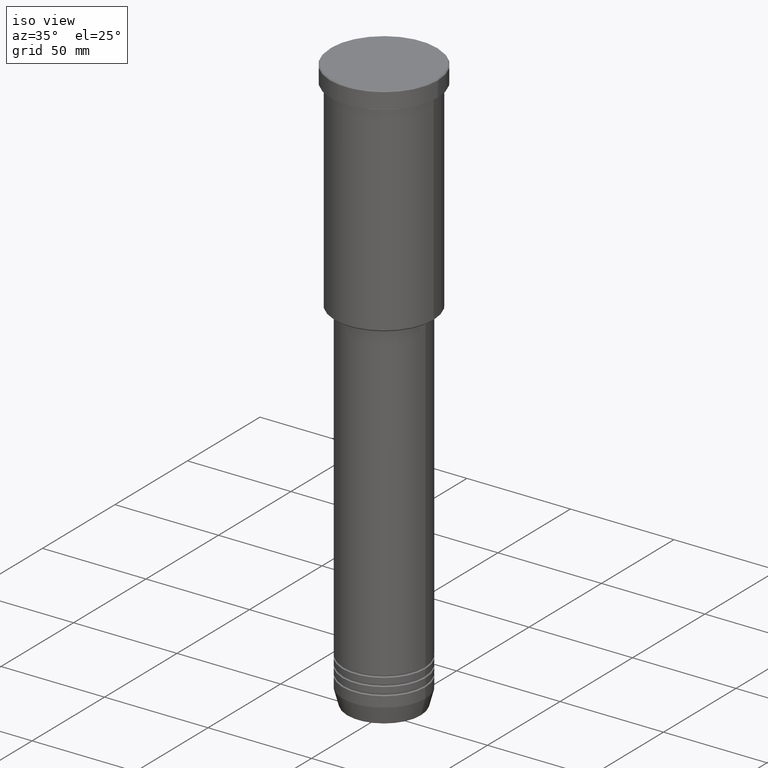
[diagram: clean part render]
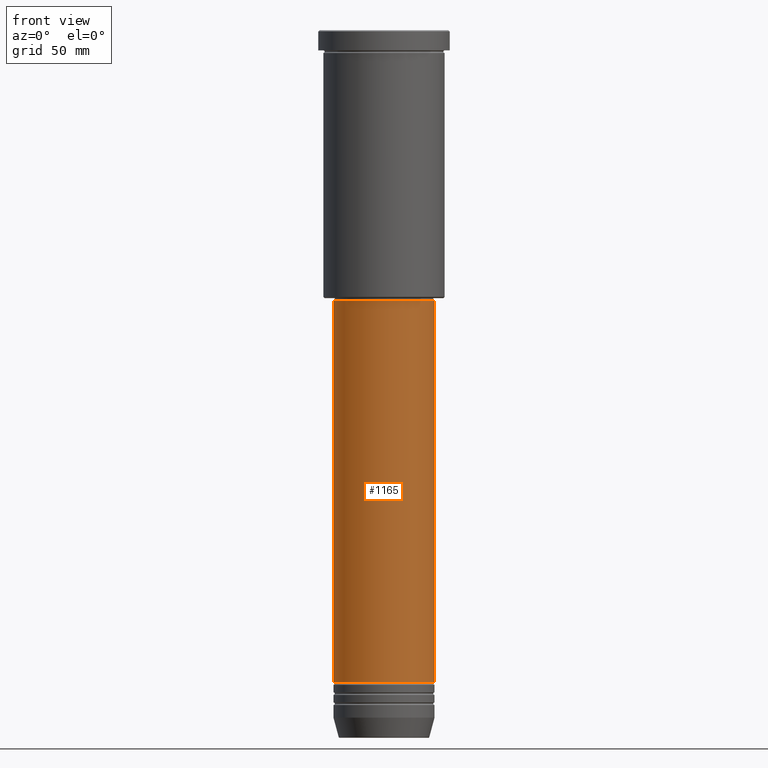
[diagram: tour spotlight — one face highlighted and labeled with its STEP entity id]
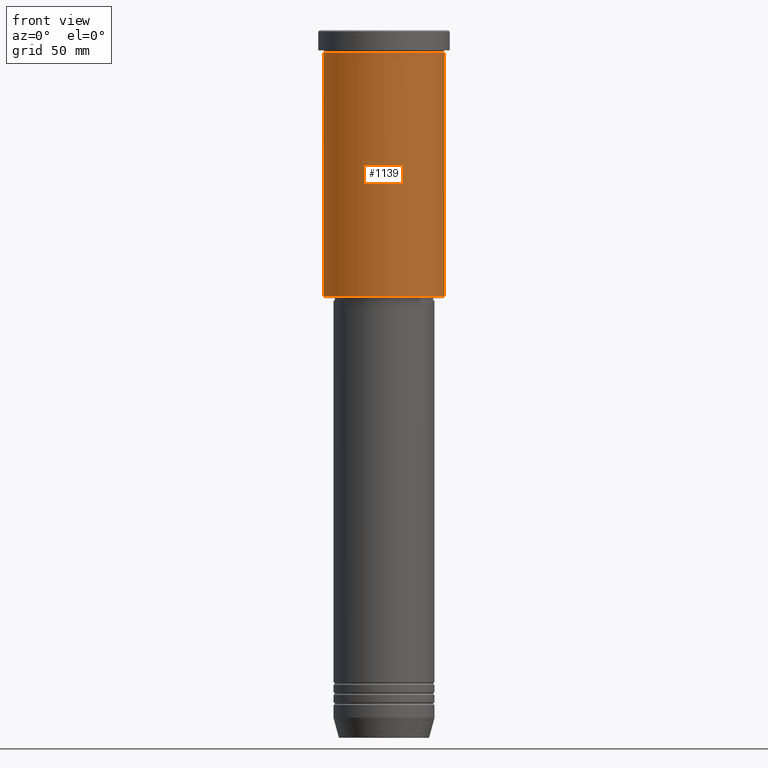
[diagram: tour spotlight — one face highlighted and labeled with its STEP entity id]
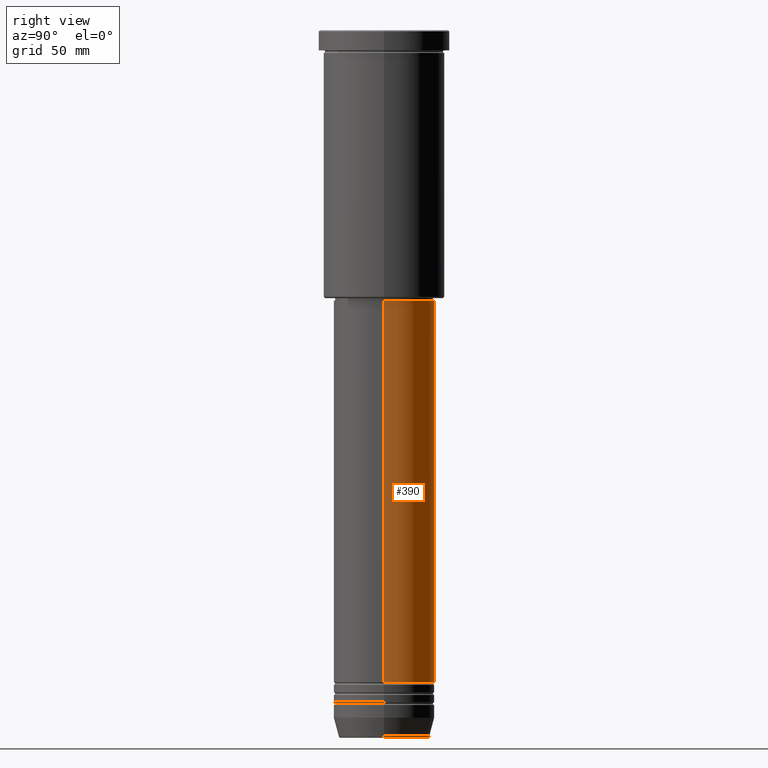
[diagram: tour spotlight — one face highlighted and labeled with its STEP entity id]
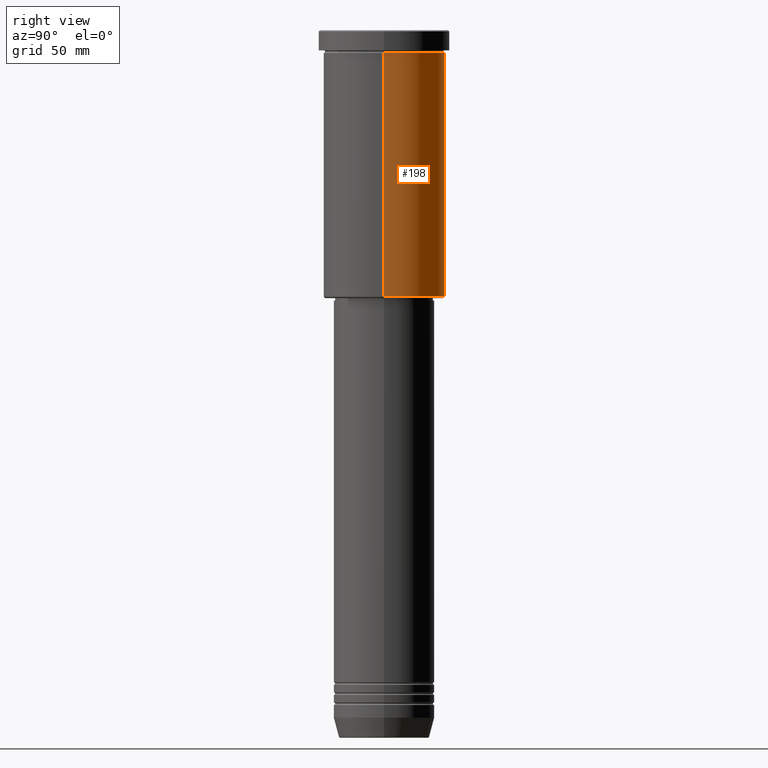
[diagram: tour spotlight — one face highlighted and labeled with its STEP entity id]
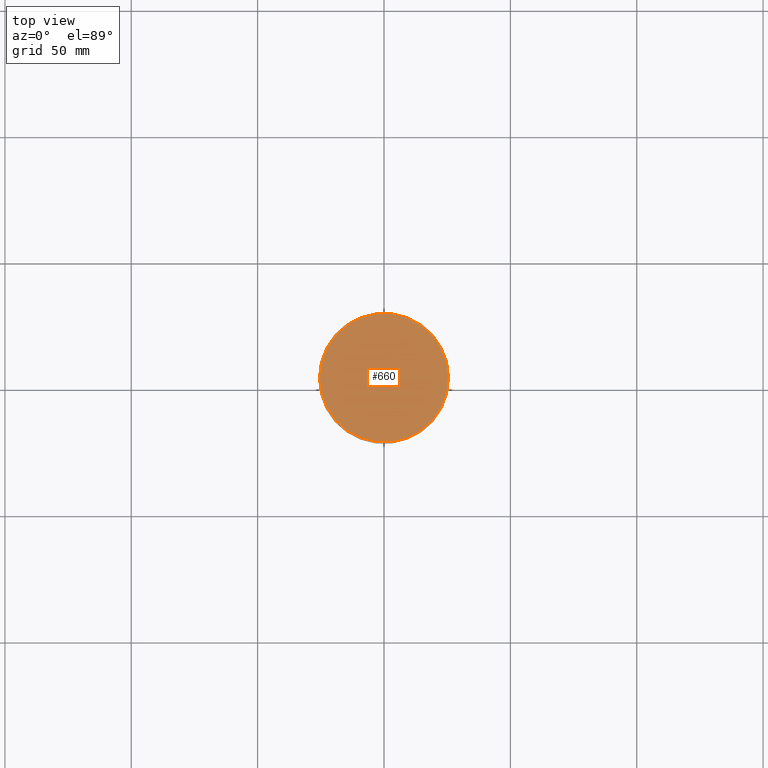
[diagram: tour spotlight — one face highlighted and labeled with its STEP entity id]
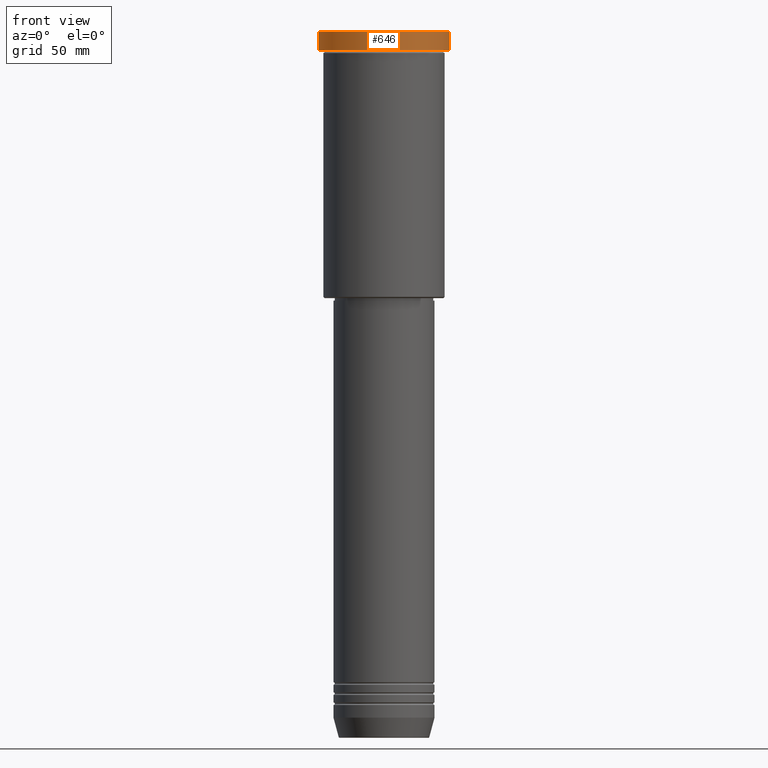
[diagram: tour spotlight — one face highlighted and labeled with its STEP entity id]
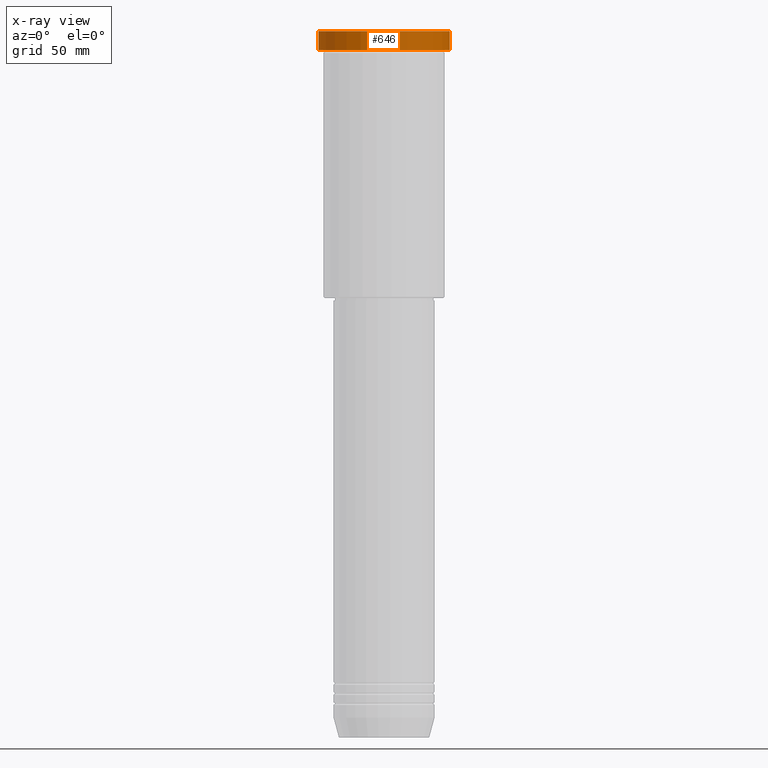
[diagram: x-ray of the same camera — body ghosted, this tour face saturated]
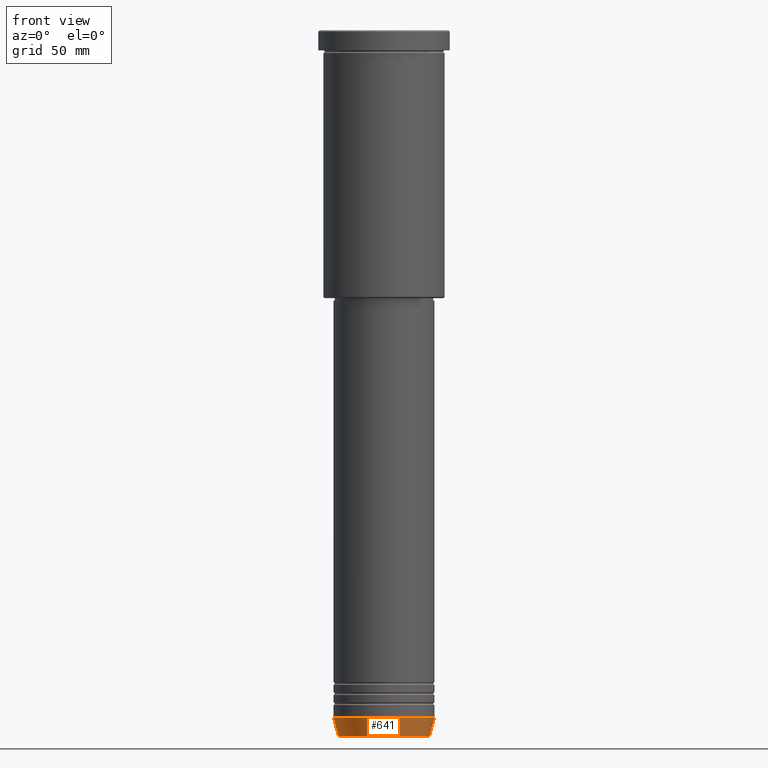
[diagram: tour spotlight — one face highlighted and labeled with its STEP entity id]
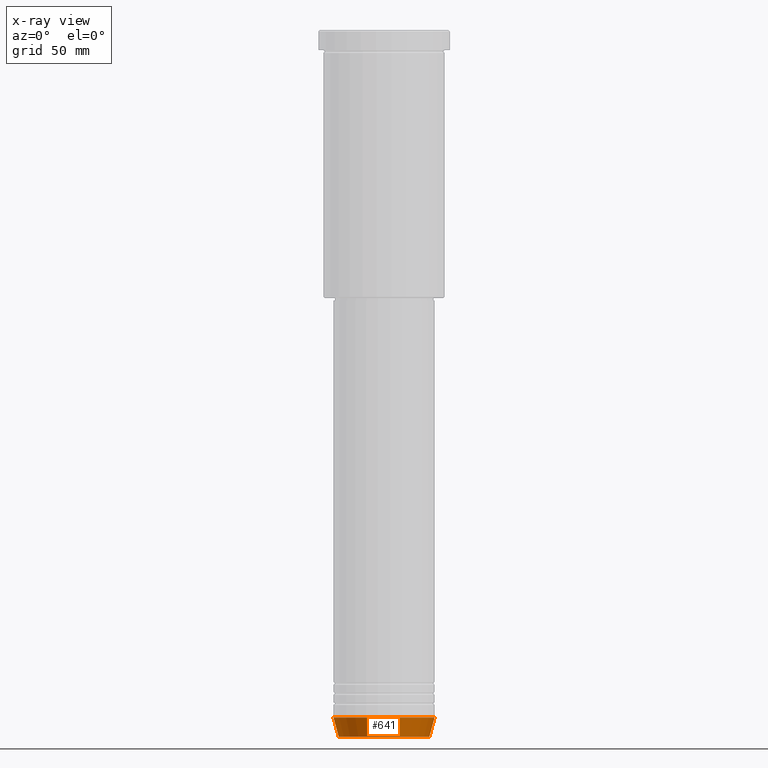
[diagram: x-ray of the same camera — body ghosted, this tour face saturated]
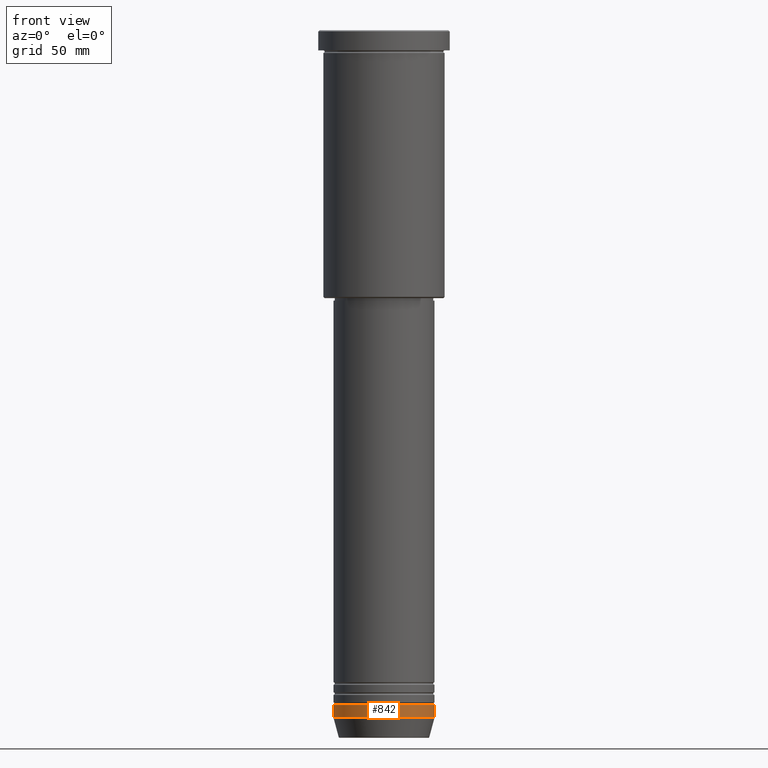
[diagram: tour spotlight — one face highlighted and labeled with its STEP entity id]
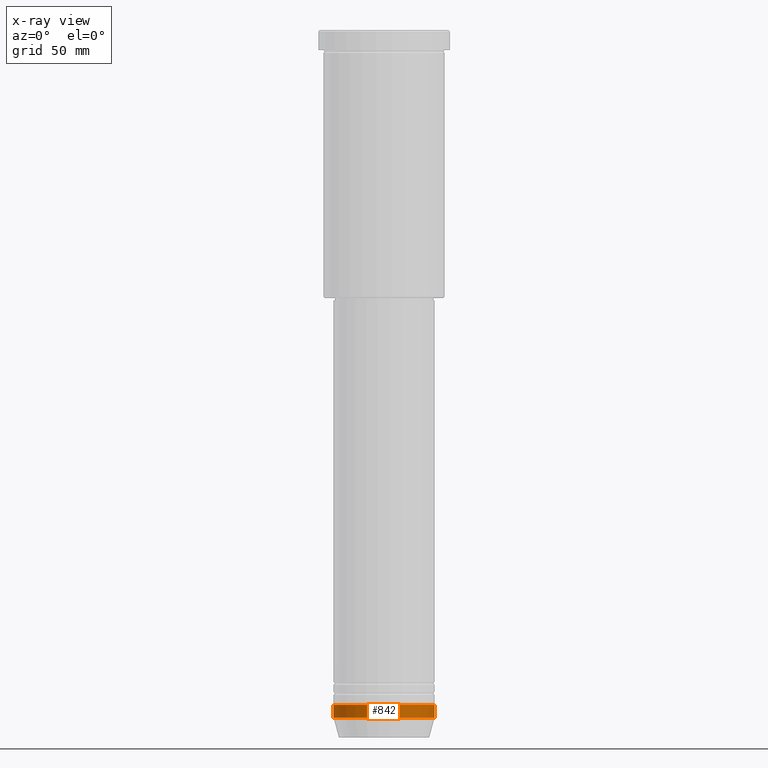
[diagram: x-ray of the same camera — body ghosted, this tour face saturated]
A machine part: a face-by-face anatomy tour. The part has 43 B-rep faces; the first image is the clean iso view, then the 8 largest visible faces are spotlighted one at a time (largest first), each with its STEP entity span.

Face 1 — front view, entity #1165. In plain terms, the highlighted cylindrical surface (partial cylindrical patch) has radius 20 mm, axis along (-0, -0, 1).
Definition (entity closure, byte-faithful):
#23 = LINE ( 'NONE', #825, #944 ) ;
#31 = ORIENTED_EDGE ( 'NONE', *, *, #751, .F. ) ;
#98 = AXIS2_PLACEMENT_3D ( 'NONE', #318, #712, #1065 ) ;
#112 = LINE ( 'NONE', #834, #303 ) ;
#119 = DIRECTION ( 'NONE',  ( -0.000000000000000000, -0.000000000000000000, 1.000000000000000000 ) ) ;
#235 = DIRECTION ( 'NONE',  ( 1.000000000000000000, 0.000000000000000000, 0.000000000000000000 ) ) ;
#303 = VECTOR ( 'NONE', #919, 1000.000000000000000 ) ;
#318 = CARTESIAN_POINT ( 'NONE',  ( 0.000000000000000000, 0.000000000000000000, -106.9999999999999858 ) ) ;
#346 = DIRECTION ( 'NONE',  ( -0.000000000000000000, -0.000000000000000000, 1.000000000000000000 ) ) ;
#377 = EDGE_CURVE ( 'NONE', #617, #796, #965, .T. ) ;
#386 = CARTESIAN_POINT ( 'NONE',  ( 20.00000000000000355, 0.000000000000000000, -258.0000000000000000 ) ) ;
#429 = CARTESIAN_POINT ( 'NONE',  ( 0.000000000000000000, 0.000000000000000000, -258.0000000000000000 ) ) ;
#458 = EDGE_CURVE ( 'NONE', #800, #1107, #687, .T. ) ;
#472 = DIRECTION ( 'NONE',  ( -0.000000000000000000, -0.000000000000000000, 1.000000000000000000 ) ) ;
#563 = FACE_OUTER_BOUND ( 'NONE', #602, .T. ) ;
#568 = CYLINDRICAL_SURFACE ( 'NONE', #832, 20.00000000000000355 ) ;
#602 = EDGE_LOOP ( 'NONE', ( #31, #1140, #704, #903 ) ) ;
#617 = VERTEX_POINT ( 'NONE', #729 ) ;
#673 = EDGE_CURVE ( 'NONE', #1107, #796, #23, .T. ) ;
#687 = CIRCLE ( 'NONE', #906, 20.00000000000000355 ) ;
#704 = ORIENTED_EDGE ( 'NONE', *, *, #673, .T. ) ;
#712 = DIRECTION ( 'NONE',  ( -0.000000000000000000, -0.000000000000000000, 1.000000000000000000 ) ) ;
#729 = CARTESIAN_POINT ( 'NONE',  ( -20.00000000000000355, 2.449293598294706907E-15, -106.9999999999999858 ) ) ;
#740 = CARTESIAN_POINT ( 'NONE',  ( 0.000000000000000000, 0.000000000000000000, 0.000000000000000000 ) ) ;
#751 = EDGE_CURVE ( 'NONE', #800, #617, #112, .T. ) ;
#762 = CARTESIAN_POINT ( 'NONE',  ( 20.00000000000000355, 0.000000000000000000, -106.9999999999999858 ) ) ;
#796 = VERTEX_POINT ( 'NONE', #762 ) ;
#800 = VERTEX_POINT ( 'NONE', #1123 ) ;
#825 = CARTESIAN_POINT ( 'NONE',  ( 20.00000000000000355, 0.000000000000000000, 0.000000000000000000 ) ) ;
#832 = AXIS2_PLACEMENT_3D ( 'NONE', #740, #472, #1100 ) ;
#834 = CARTESIAN_POINT ( 'NONE',  ( -20.00000000000000355, 2.449293598294706907E-15, 0.000000000000000000 ) ) ;
#903 = ORIENTED_EDGE ( 'NONE', *, *, #377, .F. ) ;
#906 = AXIS2_PLACEMENT_3D ( 'NONE', #429, #346, #235 ) ;
#919 = DIRECTION ( 'NONE',  ( -0.000000000000000000, -0.000000000000000000, 1.000000000000000000 ) ) ;
#944 = VECTOR ( 'NONE', #119, 1000.000000000000000 ) ;
#965 = CIRCLE ( 'NONE', #98, 20.00000000000000355 ) ;
#1065 = DIRECTION ( 'NONE',  ( 1.000000000000000000, 0.000000000000000000, 0.000000000000000000 ) ) ;
#1100 = DIRECTION ( 'NONE',  ( 1.000000000000000000, 0.000000000000000000, 0.000000000000000000 ) ) ;
#1107 = VERTEX_POINT ( 'NONE', #386 ) ;
#1123 = CARTESIAN_POINT ( 'NONE',  ( -20.00000000000000355, 2.449293598294706907E-15, -258.0000000000000000 ) ) ;
#1140 = ORIENTED_EDGE ( 'NONE', *, *, #458, .T. ) ;
#1165 = ADVANCED_FACE ( 'NONE', ( #563 ), #568, .T. ) ;

Face 2 — front view, entity #1139. In plain terms, the highlighted cylindrical surface (partial cylindrical patch) has radius 24 mm, axis along (-0, -0, 1).
Definition (entity closure, byte-faithful):
#5 = EDGE_LOOP ( 'NONE', ( #105, #246, #375, #893 ) ) ;
#15 = VECTOR ( 'NONE', #419, 1000.000000000000000 ) ;
#69 = VERTEX_POINT ( 'NONE', #298 ) ;
#74 = CARTESIAN_POINT ( 'NONE',  ( -24.00000000000000000, 2.939152317953647894E-15, 0.000000000000000000 ) ) ;
#105 = ORIENTED_EDGE ( 'NONE', *, *, #388, .F. ) ;
#128 = DIRECTION ( 'NONE',  ( -0.000000000000000000, -0.000000000000000000, 1.000000000000000000 ) ) ;
#166 = CIRCLE ( 'NONE', #810, 24.00000000000000000 ) ;
#207 = CARTESIAN_POINT ( 'NONE',  ( 0.000000000000000000, 0.000000000000000000, -8.999999999999994671 ) ) ;
#225 = EDGE_CURVE ( 'NONE', #69, #527, #166, .T. ) ;
#246 = ORIENTED_EDGE ( 'NONE', *, *, #717, .T. ) ;
#291 = LINE ( 'NONE', #1024, #535 ) ;
#295 = FACE_OUTER_BOUND ( 'NONE', #5, .T. ) ;
#298 = CARTESIAN_POINT ( 'NONE',  ( -24.00000000000000000, 2.939152317953647894E-15, -8.999999999999994671 ) ) ;
#307 = CARTESIAN_POINT ( 'NONE',  ( 0.000000000000000000, 0.000000000000000000, 0.000000000000000000 ) ) ;
#339 = LINE ( 'NONE', #74, #15 ) ;
#366 = VERTEX_POINT ( 'NONE', #936 ) ;
#375 = ORIENTED_EDGE ( 'NONE', *, *, #684, .T. ) ;
#388 = EDGE_CURVE ( 'NONE', #366, #69, #339, .T. ) ;
#419 = DIRECTION ( 'NONE',  ( -0.000000000000000000, -0.000000000000000000, 1.000000000000000000 ) ) ;
#478 = DIRECTION ( 'NONE',  ( -0.000000000000000000, -0.000000000000000000, 1.000000000000000000 ) ) ;
#481 = DIRECTION ( 'NONE',  ( 1.000000000000000000, 0.000000000000000000, 0.000000000000000000 ) ) ;
#486 = DIRECTION ( 'NONE',  ( -0.000000000000000000, -0.000000000000000000, 1.000000000000000000 ) ) ;
#490 = AXIS2_PLACEMENT_3D ( 'NONE', #578, #486, #747 ) ;
#527 = VERTEX_POINT ( 'NONE', #991 ) ;
#535 = VECTOR ( 'NONE', #665, 1000.000000000000000 ) ;
#537 = AXIS2_PLACEMENT_3D ( 'NONE', #307, #478, #1023 ) ;
#578 = CARTESIAN_POINT ( 'NONE',  ( 0.000000000000000000, 0.000000000000000000, -105.4999999999999147 ) ) ;
#640 = VERTEX_POINT ( 'NONE', #1183 ) ;
#665 = DIRECTION ( 'NONE',  ( -0.000000000000000000, -0.000000000000000000, 1.000000000000000000 ) ) ;
#684 = EDGE_CURVE ( 'NONE', #640, #527, #291, .T. ) ;
#717 = EDGE_CURVE ( 'NONE', #366, #640, #847, .T. ) ;
#747 = DIRECTION ( 'NONE',  ( -1.000000000000000000, 0.000000000000000000, 0.000000000000000000 ) ) ;
#810 = AXIS2_PLACEMENT_3D ( 'NONE', #207, #128, #481 ) ;
#847 = CIRCLE ( 'NONE', #490, 24.00000000000000000 ) ;
#893 = ORIENTED_EDGE ( 'NONE', *, *, #225, .F. ) ;
#918 = CYLINDRICAL_SURFACE ( 'NONE', #537, 24.00000000000000000 ) ;
#936 = CARTESIAN_POINT ( 'NONE',  ( -24.00000000000000000, 2.939152317953647894E-15, -105.4999999999999147 ) ) ;
#991 = CARTESIAN_POINT ( 'NONE',  ( 24.00000000000000000, 0.000000000000000000, -8.999999999999994671 ) ) ;
#1023 = DIRECTION ( 'NONE',  ( 1.000000000000000000, 0.000000000000000000, 0.000000000000000000 ) ) ;
#1024 = CARTESIAN_POINT ( 'NONE',  ( 24.00000000000000000, 0.000000000000000000, 0.000000000000000000 ) ) ;
#1139 = ADVANCED_FACE ( 'NONE', ( #295 ), #918, .T. ) ;
#1183 = CARTESIAN_POINT ( 'NONE',  ( 24.00000000000000000, 0.000000000000000000, -105.4999999999999147 ) ) ;

Face 3 — right view, entity #390. In plain terms, the highlighted cylindrical surface (partial cylindrical patch) has radius 20 mm, axis along (-0, -0, 1).
Definition (entity closure, byte-faithful):
#9 = EDGE_LOOP ( 'NONE', ( #749, #713, #1114, #895 ) ) ;
#23 = LINE ( 'NONE', #825, #944 ) ;
#53 = CYLINDRICAL_SURFACE ( 'NONE', #534, 20.00000000000000355 ) ;
#86 = DIRECTION ( 'NONE',  ( -0.000000000000000000, -0.000000000000000000, 1.000000000000000000 ) ) ;
#90 = EDGE_CURVE ( 'NONE', #796, #617, #236, .T. ) ;
#112 = LINE ( 'NONE', #834, #303 ) ;
#119 = DIRECTION ( 'NONE',  ( -0.000000000000000000, -0.000000000000000000, 1.000000000000000000 ) ) ;
#171 = DIRECTION ( 'NONE',  ( 1.000000000000000000, 0.000000000000000000, 0.000000000000000000 ) ) ;
#236 = CIRCLE ( 'NONE', #685, 20.00000000000000355 ) ;
#303 = VECTOR ( 'NONE', #919, 1000.000000000000000 ) ;
#326 = DIRECTION ( 'NONE',  ( 1.000000000000000000, 0.000000000000000000, 0.000000000000000000 ) ) ;
#333 = EDGE_CURVE ( 'NONE', #1107, #800, #705, .T. ) ;
#386 = CARTESIAN_POINT ( 'NONE',  ( 20.00000000000000355, 0.000000000000000000, -258.0000000000000000 ) ) ;
#390 = ADVANCED_FACE ( 'NONE', ( #1040 ), #53, .T. ) ;
#534 = AXIS2_PLACEMENT_3D ( 'NONE', #779, #792, #326 ) ;
#617 = VERTEX_POINT ( 'NONE', #729 ) ;
#673 = EDGE_CURVE ( 'NONE', #1107, #796, #23, .T. ) ;
#685 = AXIS2_PLACEMENT_3D ( 'NONE', #986, #86, #171 ) ;
#705 = CIRCLE ( 'NONE', #844, 20.00000000000000355 ) ;
#713 = ORIENTED_EDGE ( 'NONE', *, *, #751, .T. ) ;
#729 = CARTESIAN_POINT ( 'NONE',  ( -20.00000000000000355, 2.449293598294706907E-15, -106.9999999999999858 ) ) ;
#749 = ORIENTED_EDGE ( 'NONE', *, *, #333, .T. ) ;
#751 = EDGE_CURVE ( 'NONE', #800, #617, #112, .T. ) ;
#759 = DIRECTION ( 'NONE',  ( -0.000000000000000000, -0.000000000000000000, 1.000000000000000000 ) ) ;
#762 = CARTESIAN_POINT ( 'NONE',  ( 20.00000000000000355, 0.000000000000000000, -106.9999999999999858 ) ) ;
#779 = CARTESIAN_POINT ( 'NONE',  ( 0.000000000000000000, 0.000000000000000000, 0.000000000000000000 ) ) ;
#792 = DIRECTION ( 'NONE',  ( -0.000000000000000000, -0.000000000000000000, 1.000000000000000000 ) ) ;
#796 = VERTEX_POINT ( 'NONE', #762 ) ;
#800 = VERTEX_POINT ( 'NONE', #1123 ) ;
#825 = CARTESIAN_POINT ( 'NONE',  ( 20.00000000000000355, 0.000000000000000000, 0.000000000000000000 ) ) ;
#834 = CARTESIAN_POINT ( 'NONE',  ( -20.00000000000000355, 2.449293598294706907E-15, 0.000000000000000000 ) ) ;
#844 = AXIS2_PLACEMENT_3D ( 'NONE', #920, #759, #1122 ) ;
#895 = ORIENTED_EDGE ( 'NONE', *, *, #673, .F. ) ;
#919 = DIRECTION ( 'NONE',  ( -0.000000000000000000, -0.000000000000000000, 1.000000000000000000 ) ) ;
#920 = CARTESIAN_POINT ( 'NONE',  ( 0.000000000000000000, 0.000000000000000000, -258.0000000000000000 ) ) ;
#944 = VECTOR ( 'NONE', #119, 1000.000000000000000 ) ;
#986 = CARTESIAN_POINT ( 'NONE',  ( 0.000000000000000000, 0.000000000000000000, -106.9999999999999858 ) ) ;
#1040 = FACE_OUTER_BOUND ( 'NONE', #9, .T. ) ;
#1107 = VERTEX_POINT ( 'NONE', #386 ) ;
#1114 = ORIENTED_EDGE ( 'NONE', *, *, #90, .F. ) ;
#1122 = DIRECTION ( 'NONE',  ( 1.000000000000000000, 0.000000000000000000, 0.000000000000000000 ) ) ;
#1123 = CARTESIAN_POINT ( 'NONE',  ( -20.00000000000000355, 2.449293598294706907E-15, -258.0000000000000000 ) ) ;

Face 4 — right view, entity #198. In plain terms, the highlighted cylindrical surface (partial cylindrical patch) has radius 24 mm, axis along (-0, -0, 1).
Definition (entity closure, byte-faithful):
#15 = VECTOR ( 'NONE', #419, 1000.000000000000000 ) ;
#38 = AXIS2_PLACEMENT_3D ( 'NONE', #892, #93, #970 ) ;
#40 = CIRCLE ( 'NONE', #59, 24.00000000000000000 ) ;
#59 = AXIS2_PLACEMENT_3D ( 'NONE', #683, #603, #872 ) ;
#62 = CIRCLE ( 'NONE', #1098, 24.00000000000000000 ) ;
#69 = VERTEX_POINT ( 'NONE', #298 ) ;
#74 = CARTESIAN_POINT ( 'NONE',  ( -24.00000000000000000, 2.939152317953647894E-15, 0.000000000000000000 ) ) ;
#93 = DIRECTION ( 'NONE',  ( -0.000000000000000000, -0.000000000000000000, 1.000000000000000000 ) ) ;
#167 = CARTESIAN_POINT ( 'NONE',  ( 0.000000000000000000, 0.000000000000000000, -105.4999999999999147 ) ) ;
#198 = ADVANCED_FACE ( 'NONE', ( #1127 ), #305, .T. ) ;
#291 = LINE ( 'NONE', #1024, #535 ) ;
#298 = CARTESIAN_POINT ( 'NONE',  ( -24.00000000000000000, 2.939152317953647894E-15, -8.999999999999994671 ) ) ;
#305 = CYLINDRICAL_SURFACE ( 'NONE', #38, 24.00000000000000000 ) ;
#339 = LINE ( 'NONE', #74, #15 ) ;
#366 = VERTEX_POINT ( 'NONE', #936 ) ;
#388 = EDGE_CURVE ( 'NONE', #366, #69, #339, .T. ) ;
#419 = DIRECTION ( 'NONE',  ( -0.000000000000000000, -0.000000000000000000, 1.000000000000000000 ) ) ;
#452 = DIRECTION ( 'NONE',  ( -0.000000000000000000, -0.000000000000000000, 1.000000000000000000 ) ) ;
#501 = EDGE_LOOP ( 'NONE', ( #746, #664, #1160, #1067 ) ) ;
#527 = VERTEX_POINT ( 'NONE', #991 ) ;
#535 = VECTOR ( 'NONE', #665, 1000.000000000000000 ) ;
#603 = DIRECTION ( 'NONE',  ( -0.000000000000000000, -0.000000000000000000, 1.000000000000000000 ) ) ;
#640 = VERTEX_POINT ( 'NONE', #1183 ) ;
#664 = ORIENTED_EDGE ( 'NONE', *, *, #388, .T. ) ;
#665 = DIRECTION ( 'NONE',  ( -0.000000000000000000, -0.000000000000000000, 1.000000000000000000 ) ) ;
#683 = CARTESIAN_POINT ( 'NONE',  ( 0.000000000000000000, 0.000000000000000000, -8.999999999999994671 ) ) ;
#684 = EDGE_CURVE ( 'NONE', #640, #527, #291, .T. ) ;
#746 = ORIENTED_EDGE ( 'NONE', *, *, #1070, .T. ) ;
#814 = DIRECTION ( 'NONE',  ( -1.000000000000000000, 0.000000000000000000, 0.000000000000000000 ) ) ;
#833 = EDGE_CURVE ( 'NONE', #527, #69, #40, .T. ) ;
#872 = DIRECTION ( 'NONE',  ( 1.000000000000000000, 0.000000000000000000, 0.000000000000000000 ) ) ;
#892 = CARTESIAN_POINT ( 'NONE',  ( 0.000000000000000000, 0.000000000000000000, 0.000000000000000000 ) ) ;
#936 = CARTESIAN_POINT ( 'NONE',  ( -24.00000000000000000, 2.939152317953647894E-15, -105.4999999999999147 ) ) ;
#970 = DIRECTION ( 'NONE',  ( 1.000000000000000000, 0.000000000000000000, 0.000000000000000000 ) ) ;
#991 = CARTESIAN_POINT ( 'NONE',  ( 24.00000000000000000, 0.000000000000000000, -8.999999999999994671 ) ) ;
#1024 = CARTESIAN_POINT ( 'NONE',  ( 24.00000000000000000, 0.000000000000000000, 0.000000000000000000 ) ) ;
#1067 = ORIENTED_EDGE ( 'NONE', *, *, #684, .F. ) ;
#1070 = EDGE_CURVE ( 'NONE', #640, #366, #62, .T. ) ;
#1098 = AXIS2_PLACEMENT_3D ( 'NONE', #167, #452, #814 ) ;
#1127 = FACE_OUTER_BOUND ( 'NONE', #501, .T. ) ;
#1160 = ORIENTED_EDGE ( 'NONE', *, *, #833, .F. ) ;
#1183 = CARTESIAN_POINT ( 'NONE',  ( 24.00000000000000000, 0.000000000000000000, -105.4999999999999147 ) ) ;

Face 5 — top view, entity #660. In plain terms, the highlighted planar face has unit normal (0, -0, 1).
Definition (entity closure, byte-faithful):
#83 = ORIENTED_EDGE ( 'NONE', *, *, #594, .T. ) ;
#91 = CARTESIAN_POINT ( 'NONE',  ( 0.000000000000000000, 0.000000000000000000, 0.000000000000000000 ) ) ;
#115 = AXIS2_PLACEMENT_3D ( 'NONE', #91, #449, #474 ) ;
#131 = EDGE_CURVE ( 'NONE', #290, #518, #532, .T. ) ;
#175 = DIRECTION ( 'NONE',  ( 1.000000000000000000, 0.000000000000000000, 0.000000000000000000 ) ) ;
#260 = DIRECTION ( 'NONE',  ( -0.000000000000000000, -0.000000000000000000, 1.000000000000000000 ) ) ;
#281 = DIRECTION ( 'NONE',  ( -0.000000000000000000, -0.000000000000000000, 1.000000000000000000 ) ) ;
#290 = VERTEX_POINT ( 'NONE', #1109 ) ;
#320 = CIRCLE ( 'NONE', #651, 25.49999999999994316 ) ;
#360 = CARTESIAN_POINT ( 'NONE',  ( 0.000000000000000000, 0.000000000000000000, 0.000000000000000000 ) ) ;
#449 = DIRECTION ( 'NONE',  ( 0.000000000000000000, -0.000000000000000000, 1.000000000000000000 ) ) ;
#474 = DIRECTION ( 'NONE',  ( 1.000000000000000000, 0.000000000000000000, 0.000000000000000000 ) ) ;
#518 = VERTEX_POINT ( 'NONE', #904 ) ;
#532 = CIRCLE ( 'NONE', #809, 25.49999999999994316 ) ;
#544 = PLANE ( 'NONE',  #115 ) ;
#594 = EDGE_CURVE ( 'NONE', #518, #290, #320, .T. ) ;
#651 = AXIS2_PLACEMENT_3D ( 'NONE', #360, #281, #978 ) ;
#660 = ADVANCED_FACE ( 'NONE', ( #1163 ), #544, .T. ) ;
#809 = AXIS2_PLACEMENT_3D ( 'NONE', #1169, #260, #175 ) ;
#823 = EDGE_LOOP ( 'NONE', ( #83, #1168 ) ) ;
#904 = CARTESIAN_POINT ( 'NONE',  ( -25.49999999999994316, 0.000000000000000000, 0.000000000000000000 ) ) ;
#978 = DIRECTION ( 'NONE',  ( 1.000000000000000000, 0.000000000000000000, 0.000000000000000000 ) ) ;
#1109 = CARTESIAN_POINT ( 'NONE',  ( 25.49999999999994316, 3.153465507804430854E-15, 0.000000000000000000 ) ) ;
#1163 = FACE_OUTER_BOUND ( 'NONE', #823, .T. ) ;
#1168 = ORIENTED_EDGE ( 'NONE', *, *, #131, .T. ) ;
#1169 = CARTESIAN_POINT ( 'NONE',  ( 0.000000000000000000, 0.000000000000000000, 0.000000000000000000 ) ) ;

Face 6 — front view, entity #646. An x-ray twin of the same camera follows (body ghosted, this face saturated) — the face is partly hidden behind the body. In plain terms, the highlighted cylindrical surface (partial cylindrical patch) has radius 26 mm, axis along (-0, -0, 1).
Definition (entity closure, byte-faithful):
#7 = VERTEX_POINT ( 'NONE', #216 ) ;
#35 = ORIENTED_EDGE ( 'NONE', *, *, #1030, .T. ) ;
#68 = DIRECTION ( 'NONE',  ( -0.000000000000000000, -0.000000000000000000, 1.000000000000000000 ) ) ;
#104 = CARTESIAN_POINT ( 'NONE',  ( 26.00000000000000000, 0.000000000000000000, -0.5000000000000525135 ) ) ;
#120 = LINE ( 'NONE', #933, #319 ) ;
#156 = LINE ( 'NONE', #522, #1096 ) ;
#177 = DIRECTION ( 'NONE',  ( -0.000000000000000000, -0.000000000000000000, 1.000000000000000000 ) ) ;
#203 = EDGE_CURVE ( 'NONE', #628, #976, #605, .T. ) ;
#216 = CARTESIAN_POINT ( 'NONE',  ( 26.00000000000000000, 0.000000000000000000, -7.999999999999992895 ) ) ;
#263 = AXIS2_PLACEMENT_3D ( 'NONE', #437, #177, #901 ) ;
#264 = CYLINDRICAL_SURFACE ( 'NONE', #263, 26.00000000000000000 ) ;
#304 = EDGE_CURVE ( 'NONE', #7, #628, #120, .T. ) ;
#319 = VECTOR ( 'NONE', #484, 1000.000000000000000 ) ;
#378 = EDGE_LOOP ( 'NONE', ( #1179, #35, #1062, #387 ) ) ;
#385 = CIRCLE ( 'NONE', #519, 26.00000000000000000 ) ;
#387 = ORIENTED_EDGE ( 'NONE', *, *, #203, .T. ) ;
#437 = CARTESIAN_POINT ( 'NONE',  ( 0.000000000000000000, 0.000000000000000000, 0.000000000000000000 ) ) ;
#484 = DIRECTION ( 'NONE',  ( -0.000000000000000000, -0.000000000000000000, 1.000000000000000000 ) ) ;
#508 = EDGE_CURVE ( 'NONE', #858, #976, #156, .T. ) ;
#519 = AXIS2_PLACEMENT_3D ( 'NONE', #1180, #711, #1170 ) ;
#522 = CARTESIAN_POINT ( 'NONE',  ( -26.00000000000000000, 3.184081677783118191E-15, 0.000000000000000000 ) ) ;
#605 = CIRCLE ( 'NONE', #737, 26.00000000000000000 ) ;
#619 = CARTESIAN_POINT ( 'NONE',  ( -26.00000000000000000, 3.184081677783118191E-15, -0.5000000000000525135 ) ) ;
#628 = VERTEX_POINT ( 'NONE', #104 ) ;
#646 = ADVANCED_FACE ( 'NONE', ( #1094 ), #264, .T. ) ;
#680 = CARTESIAN_POINT ( 'NONE',  ( -26.00000000000000000, 3.184081677783118191E-15, -7.999999999999992895 ) ) ;
#711 = DIRECTION ( 'NONE',  ( -0.000000000000000000, -0.000000000000000000, 1.000000000000000000 ) ) ;
#737 = AXIS2_PLACEMENT_3D ( 'NONE', #885, #981, #1154 ) ;
#858 = VERTEX_POINT ( 'NONE', #680 ) ;
#885 = CARTESIAN_POINT ( 'NONE',  ( 0.000000000000000000, 0.000000000000000000, -0.5000000000000525135 ) ) ;
#901 = DIRECTION ( 'NONE',  ( 1.000000000000000000, 0.000000000000000000, 0.000000000000000000 ) ) ;
#933 = CARTESIAN_POINT ( 'NONE',  ( 26.00000000000000000, 0.000000000000000000, 0.000000000000000000 ) ) ;
#976 = VERTEX_POINT ( 'NONE', #619 ) ;
#981 = DIRECTION ( 'NONE',  ( 0.000000000000000000, 0.000000000000000000, -1.000000000000000000 ) ) ;
#1030 = EDGE_CURVE ( 'NONE', #858, #7, #385, .T. ) ;
#1062 = ORIENTED_EDGE ( 'NONE', *, *, #304, .T. ) ;
#1094 = FACE_OUTER_BOUND ( 'NONE', #378, .T. ) ;
#1096 = VECTOR ( 'NONE', #68, 1000.000000000000000 ) ;
#1154 = DIRECTION ( 'NONE',  ( 1.000000000000000000, 0.000000000000000000, 0.000000000000000000 ) ) ;
#1170 = DIRECTION ( 'NONE',  ( 1.000000000000000000, 0.000000000000000000, 0.000000000000000000 ) ) ;
#1179 = ORIENTED_EDGE ( 'NONE', *, *, #508, .F. ) ;
#1180 = CARTESIAN_POINT ( 'NONE',  ( 0.000000000000000000, 0.000000000000000000, -7.999999999999992895 ) ) ;

Face 7 — front view, entity #641. An x-ray twin of the same camera follows (body ghosted, this face saturated) — the face is partly hidden behind the body. In plain terms, the highlighted conical surface has half-angle 15 deg.
Definition (entity closure, byte-faithful):
#26 = DIRECTION ( 'NONE',  ( -0.000000000000000000, -0.000000000000000000, 1.000000000000000000 ) ) ;
#34 = CARTESIAN_POINT ( 'NONE',  ( 20.00000000000000355, 0.000000000000000000, -272.0000000000000000 ) ) ;
#36 = CARTESIAN_POINT ( 'NONE',  ( -20.00000000000000355, 2.449293598294706907E-15, -272.0000000000000000 ) ) ;
#80 = DIRECTION ( 'NONE',  ( -0.000000000000000000, -0.000000000000000000, 1.000000000000000000 ) ) ;
#121 = DIRECTION ( 'NONE',  ( 1.000000000000000000, 0.000000000000000000, 0.000000000000000000 ) ) ;
#130 = DIRECTION ( 'NONE',  ( -0.000000000000000000, -0.000000000000000000, 1.000000000000000000 ) ) ;
#215 = VERTEX_POINT ( 'NONE', #659 ) ;
#222 = AXIS2_PLACEMENT_3D ( 'NONE', #1012, #26, #121 ) ;
#232 = EDGE_CURVE ( 'NONE', #781, #342, #748, .T. ) ;
#286 = VECTOR ( 'NONE', #288, 1000.000000000000114 ) ;
#288 = DIRECTION ( 'NONE',  ( 0.2588190451025212391, 0.000000000000000000, 0.9659258262890680902 ) ) ;
#342 = VERTEX_POINT ( 'NONE', #470 ) ;
#368 = EDGE_CURVE ( 'NONE', #342, #512, #489, .T. ) ;
#470 = CARTESIAN_POINT ( 'NONE',  ( -20.00000000000000355, 2.449293598294706907E-15, -272.0000000000000000 ) ) ;
#483 = CARTESIAN_POINT ( 'NONE',  ( -17.95570587970608045, 2.324116685748021371E-15, -279.6294095225512706 ) ) ;
#489 = CIRCLE ( 'NONE', #738, 20.00000000000000355 ) ;
#512 = VERTEX_POINT ( 'NONE', #974 ) ;
#576 = DIRECTION ( 'NONE',  ( -0.2588190451025212391, 3.169619151431771721E-17, 0.9659258262890680902 ) ) ;
#616 = ORIENTED_EDGE ( 'NONE', *, *, #675, .T. ) ;
#633 = AXIS2_PLACEMENT_3D ( 'NONE', #820, #80, #798 ) ;
#641 = ADVANCED_FACE ( 'NONE', ( #1074 ), #1133, .T. ) ;
#659 = CARTESIAN_POINT ( 'NONE',  ( 17.95570587970608045, 0.000000000000000000, -279.6294095225512706 ) ) ;
#662 = ORIENTED_EDGE ( 'NONE', *, *, #232, .F. ) ;
#675 = EDGE_CURVE ( 'NONE', #215, #512, #676, .T. ) ;
#676 = LINE ( 'NONE', #34, #286 ) ;
#689 = CIRCLE ( 'NONE', #222, 17.95570587970608045 ) ;
#738 = AXIS2_PLACEMENT_3D ( 'NONE', #763, #130, #1125 ) ;
#748 = LINE ( 'NONE', #36, #864 ) ;
#763 = CARTESIAN_POINT ( 'NONE',  ( 0.000000000000000000, 0.000000000000000000, -272.0000000000000000 ) ) ;
#781 = VERTEX_POINT ( 'NONE', #483 ) ;
#798 = DIRECTION ( 'NONE',  ( 1.000000000000000000, 0.000000000000000000, 0.000000000000000000 ) ) ;
#820 = CARTESIAN_POINT ( 'NONE',  ( 0.000000000000000000, 0.000000000000000000, -272.0000000000000000 ) ) ;
#864 = VECTOR ( 'NONE', #576, 1000.000000000000114 ) ;
#943 = ORIENTED_EDGE ( 'NONE', *, *, #368, .F. ) ;
#974 = CARTESIAN_POINT ( 'NONE',  ( 20.00000000000000355, 0.000000000000000000, -272.0000000000000000 ) ) ;
#1012 = CARTESIAN_POINT ( 'NONE',  ( 0.000000000000000000, 0.000000000000000000, -279.6294095225512706 ) ) ;
#1033 = ORIENTED_EDGE ( 'NONE', *, *, #1101, .T. ) ;
#1074 = FACE_OUTER_BOUND ( 'NONE', #1080, .T. ) ;
#1080 = EDGE_LOOP ( 'NONE', ( #662, #1033, #616, #943 ) ) ;
#1101 = EDGE_CURVE ( 'NONE', #781, #215, #689, .T. ) ;
#1125 = DIRECTION ( 'NONE',  ( 1.000000000000000000, 0.000000000000000000, 0.000000000000000000 ) ) ;
#1133 = CONICAL_SURFACE ( 'NONE', #633, 20.00000000000000355, 0.2617993877991499629 ) ;

Face 8 — front view, entity #842. An x-ray twin of the same camera follows (body ghosted, this face saturated) — the face is partly hidden behind the body. In plain terms, the highlighted cylindrical surface (partial cylindrical patch) has radius 20 mm, axis along (-0, -0, 1).
Definition (entity closure, byte-faithful):
#3 = LINE ( 'NONE', #835, #380 ) ;
#11 = ORIENTED_EDGE ( 'NONE', *, *, #368, .T. ) ;
#46 = CYLINDRICAL_SURFACE ( 'NONE', #204, 20.00000000000000355 ) ;
#60 = EDGE_CURVE ( 'NONE', #512, #597, #3, .T. ) ;
#67 = DIRECTION ( 'NONE',  ( -0.000000000000000000, -0.000000000000000000, 1.000000000000000000 ) ) ;
#99 = DIRECTION ( 'NONE',  ( -0.000000000000000000, -0.000000000000000000, 1.000000000000000000 ) ) ;
#126 = EDGE_CURVE ( 'NONE', #342, #336, #164, .T. ) ;
#130 = DIRECTION ( 'NONE',  ( -0.000000000000000000, -0.000000000000000000, 1.000000000000000000 ) ) ;
#164 = LINE ( 'NONE', #1042, #414 ) ;
#181 = CARTESIAN_POINT ( 'NONE',  ( 20.00000000000000000, 0.000000000000000000, -267.0000000000000000 ) ) ;
#204 = AXIS2_PLACEMENT_3D ( 'NONE', #1037, #67, #422 ) ;
#219 = AXIS2_PLACEMENT_3D ( 'NONE', #593, #526, #1143 ) ;
#269 = EDGE_LOOP ( 'NONE', ( #351, #11, #284, #1146 ) ) ;
#283 = DIRECTION ( 'NONE',  ( -0.000000000000000000, -0.000000000000000000, 1.000000000000000000 ) ) ;
#284 = ORIENTED_EDGE ( 'NONE', *, *, #60, .T. ) ;
#313 = CARTESIAN_POINT ( 'NONE',  ( -20.00000000000000000, 2.449293598294706513E-15, -267.0000000000000000 ) ) ;
#336 = VERTEX_POINT ( 'NONE', #313 ) ;
#342 = VERTEX_POINT ( 'NONE', #470 ) ;
#351 = ORIENTED_EDGE ( 'NONE', *, *, #126, .F. ) ;
#368 = EDGE_CURVE ( 'NONE', #342, #512, #489, .T. ) ;
#380 = VECTOR ( 'NONE', #283, 1000.000000000000000 ) ;
#394 = EDGE_CURVE ( 'NONE', #336, #597, #1036, .T. ) ;
#414 = VECTOR ( 'NONE', #99, 1000.000000000000000 ) ;
#422 = DIRECTION ( 'NONE',  ( 1.000000000000000000, 0.000000000000000000, 0.000000000000000000 ) ) ;
#470 = CARTESIAN_POINT ( 'NONE',  ( -20.00000000000000355, 2.449293598294706907E-15, -272.0000000000000000 ) ) ;
#489 = CIRCLE ( 'NONE', #738, 20.00000000000000355 ) ;
#512 = VERTEX_POINT ( 'NONE', #974 ) ;
#526 = DIRECTION ( 'NONE',  ( -0.000000000000000000, -0.000000000000000000, 1.000000000000000000 ) ) ;
#593 = CARTESIAN_POINT ( 'NONE',  ( 0.000000000000000000, 0.000000000000000000, -267.0000000000000000 ) ) ;
#597 = VERTEX_POINT ( 'NONE', #181 ) ;
#738 = AXIS2_PLACEMENT_3D ( 'NONE', #763, #130, #1125 ) ;
#763 = CARTESIAN_POINT ( 'NONE',  ( 0.000000000000000000, 0.000000000000000000, -272.0000000000000000 ) ) ;
#835 = CARTESIAN_POINT ( 'NONE',  ( 20.00000000000000355, 0.000000000000000000, 0.000000000000000000 ) ) ;
#842 = ADVANCED_FACE ( 'NONE', ( #955 ), #46, .T. ) ;
#955 = FACE_OUTER_BOUND ( 'NONE', #269, .T. ) ;
#974 = CARTESIAN_POINT ( 'NONE',  ( 20.00000000000000355, 0.000000000000000000, -272.0000000000000000 ) ) ;
#1036 = CIRCLE ( 'NONE', #219, 20.00000000000000000 ) ;
#1037 = CARTESIAN_POINT ( 'NONE',  ( 0.000000000000000000, 0.000000000000000000, 0.000000000000000000 ) ) ;
#1042 = CARTESIAN_POINT ( 'NONE',  ( -20.00000000000000355, 2.449293598294706907E-15, 0.000000000000000000 ) ) ;
#1125 = DIRECTION ( 'NONE',  ( 1.000000000000000000, 0.000000000000000000, 0.000000000000000000 ) ) ;
#1143 = DIRECTION ( 'NONE',  ( 1.000000000000000000, 0.000000000000000000, 0.000000000000000000 ) ) ;
#1146 = ORIENTED_EDGE ( 'NONE', *, *, #394, .F. ) ;